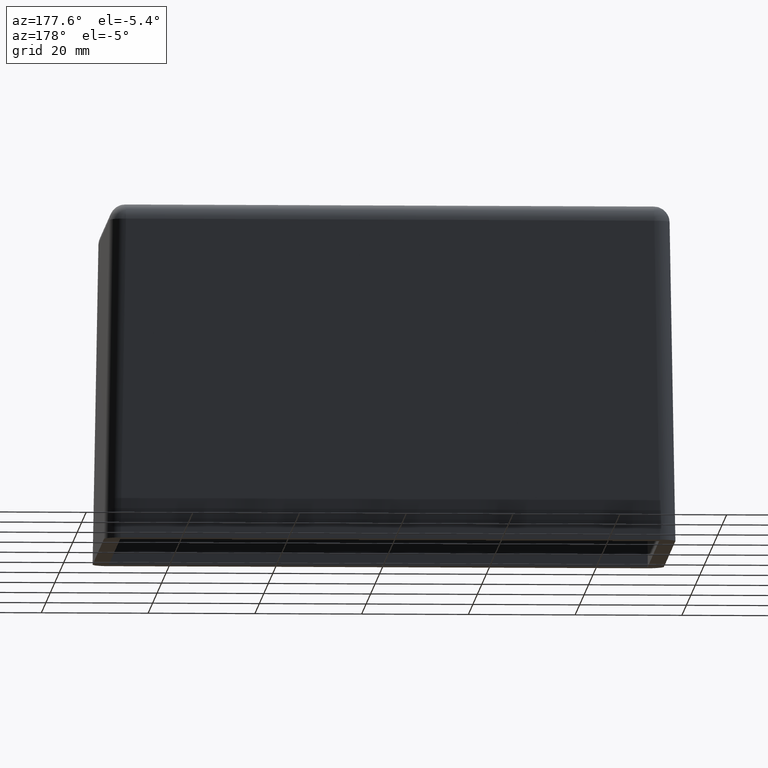
[diagram: clean part render]
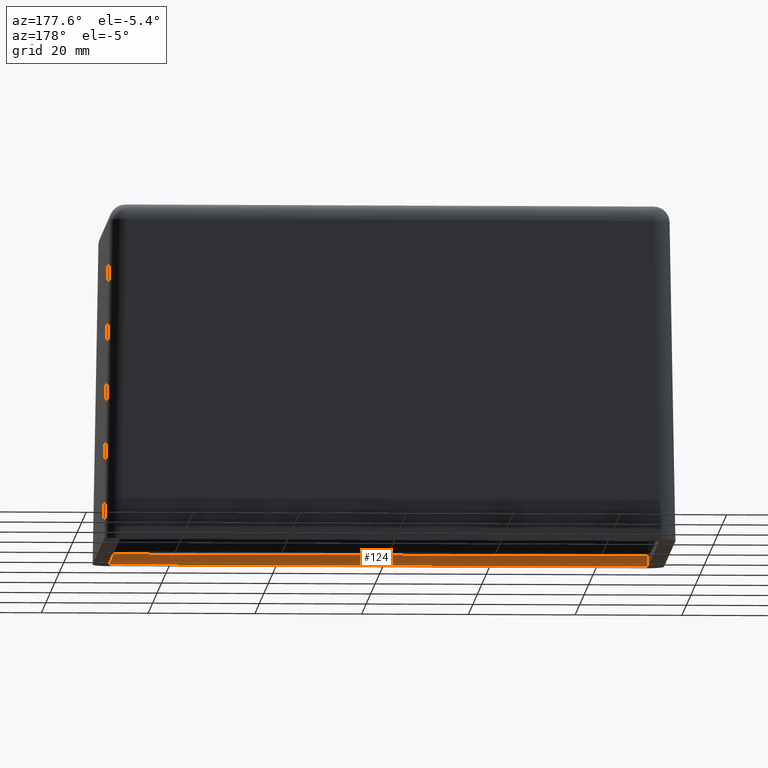
[diagram: same view with one face highlighted and labeled with its STEP entity id]
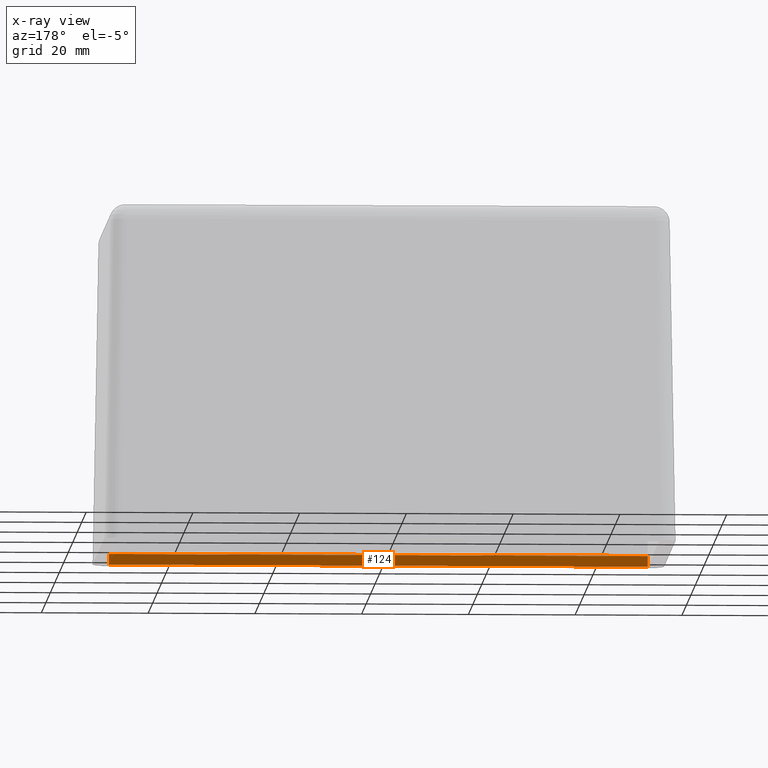
[diagram: x-ray of the same camera — body ghosted, the highlighted face saturated]
A machine part, auxiliary view. The second image highlights one B-rep face of the part: STEP entity #124.
The next image is the same camera in x-ray: the body ghosted, the highlighted face saturated — about 0% of this face is hidden behind the body in this view.
In plain terms, the highlighted planar face has unit normal (0, 1, 0).
Its self-contained STEP definition (entity closure, byte-faithful):
#124 = ADVANCED_FACE( '', ( #308 ), #309, .T. );
#308 = FACE_OUTER_BOUND( '', #567, .T. );
#309 = PLANE( '', #568 );
#567 = EDGE_LOOP( '', ( #1205, #1206, #1207, #1208 ) );
#568 = AXIS2_PLACEMENT_3D( '', #1209, #1210, #1211 );
#1205 = ORIENTED_EDGE( '', *, *, #1855, .T. );
#1206 = ORIENTED_EDGE( '', *, *, #1848, .F. );
#1207 = ORIENTED_EDGE( '', *, *, #1856, .T. );
#1208 = ORIENTED_EDGE( '', *, *, #1853, .T. );
#1209 = CARTESIAN_POINT( '', ( 50.4887418179901, -25.4887418179901, 0.000000000000000 ) );
#1210 = DIRECTION( '', ( 0.000000000000000, 1.00000000000000, 0.000000000000000 ) );
#1211 = DIRECTION( '', ( 1.00000000000000, 0.000000000000000, 0.000000000000000 ) );
#1848 = EDGE_CURVE( '', #2238, #2233, #2240, .T. );
#1853 = EDGE_CURVE( '', #2248, #2246, #2249, .T. );
#1855 = EDGE_CURVE( '', #2246, #2233, #2251, .F. );
#1856 = EDGE_CURVE( '', #2238, #2248, #2252, .T. );
#2233 = VERTEX_POINT( '', #3097 );
#2238 = VERTEX_POINT( '', #3104 );
#2240 = LINE( '', #3107, #3108 );
#2246 = VERTEX_POINT( '', #3117 );
#2248 = VERTEX_POINT( '', #3120 );
#2249 = LINE( '', #3121, #3122 );
#2251 = LINE( '', #3125, #3126 );
#2252 = LINE( '', #3127, #3128 );
#3097 = CARTESIAN_POINT( '', ( 50.4887418179901, -25.4887418179901, 2.00000000000000 ) );
#3104 = CARTESIAN_POINT( '', ( 50.4887418179901, -25.4887418179901, 0.000000000000000 ) );
#3107 = CARTESIAN_POINT( '', ( 50.4887418179901, -25.4887418179901, 0.000000000000000 ) );
#3108 = VECTOR( '', #3488, 1000.00000000000 );
#3117 = CARTESIAN_POINT( '', ( -50.4887418179901, -25.4887418179901, 2.00000000000000 ) );
#3120 = CARTESIAN_POINT( '', ( -50.4887418179901, -25.4887418179901, 0.000000000000000 ) );
#3121 = CARTESIAN_POINT( '', ( -50.4887418179901, -25.4887418179901, 0.000000000000000 ) );
#3122 = VECTOR( '', #3493, 1000.00000000000 );
#3125 = CARTESIAN_POINT( '', ( -50.0000000000000, -25.4887418179901, 2.00000000000000 ) );
#3126 = VECTOR( '', #3495, 1000.00000000000 );
#3127 = CARTESIAN_POINT( '', ( 50.4887418179901, -25.4887418179901, 0.000000000000000 ) );
#3128 = VECTOR( '', #3496, 1000.00000000000 );
#3488 = DIRECTION( '', ( 0.000000000000000, 0.000000000000000, 1.00000000000000 ) );
#3493 = DIRECTION( '', ( 0.000000000000000, 0.000000000000000, 1.00000000000000 ) );
#3495 = DIRECTION( '', ( -1.00000000000000, 0.000000000000000, 0.000000000000000 ) );
#3496 = DIRECTION( '', ( -1.00000000000000, 0.000000000000000, 0.000000000000000 ) );